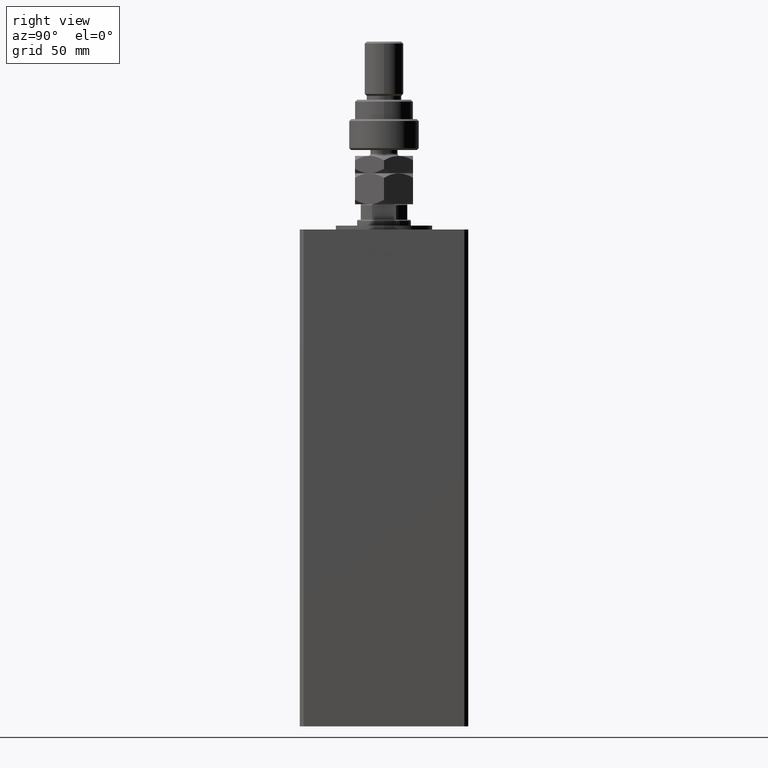
[diagram: clean part render]
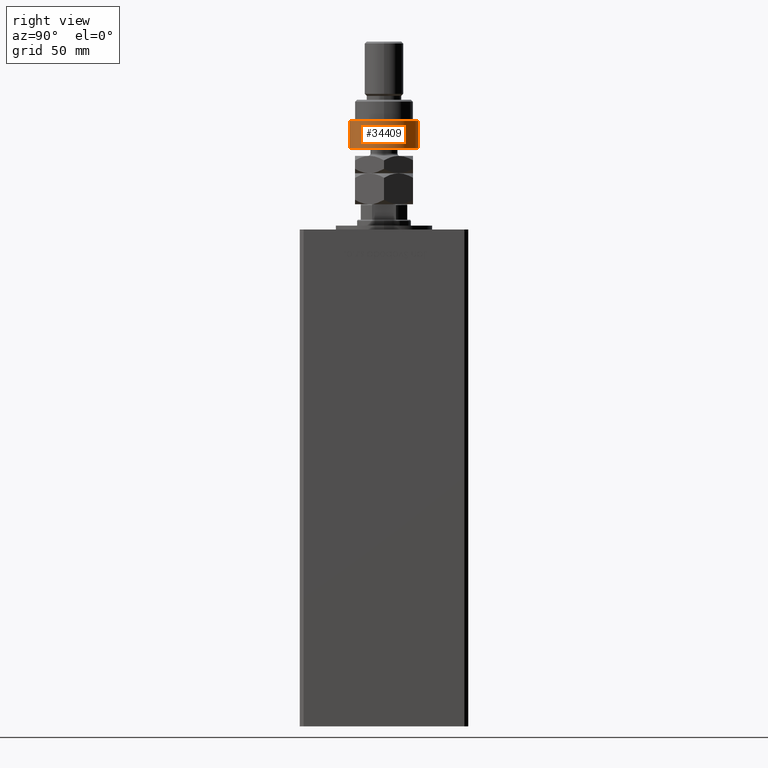
[diagram: same view with one face highlighted and labeled with its STEP entity id]
A machine part, right view. The second image highlights one B-rep face of the part: STEP entity #34409.
In plain terms, the highlighted cylindrical surface (edge-blend (fillet) strip) has radius 18 mm, axis along (-0, -0, -1).
Its self-contained STEP definition (entity closure, byte-faithful):
#983 = CARTESIAN_POINT ( 'NONE',  ( 0.000000000000000000, 0.000000000000000000, 16.00000000000000000 ) ) ;
#2047 = DIRECTION ( 'NONE',  ( -0.000000000000000000, -0.000000000000000000, -1.000000000000000000 ) ) ;
#2955 = AXIS2_PLACEMENT_3D ( 'NONE', #983, #23218, #35184 ) ;
#3449 = AXIS2_PLACEMENT_3D ( 'NONE', #52257, #10804, #19176 ) ;
#6806 = ORIENTED_EDGE ( 'NONE', *, *, #18914, .T. ) ;
#7762 = VERTEX_POINT ( 'NONE', #14590 ) ;
#8435 = ORIENTED_EDGE ( 'NONE', *, *, #43562, .T. ) ;
#9992 = CARTESIAN_POINT ( 'NONE',  ( -16.36306817195357155, 7.500000000000000000, 17.50000000000000000 ) ) ;
#10247 = DIRECTION ( 'NONE',  ( -0.000000000000000000, -0.000000000000000000, 1.000000000000000000 ) ) ;
#10804 = DIRECTION ( 'NONE',  ( -0.000000000000000000, -0.000000000000000000, 1.000000000000000000 ) ) ;
#10878 = ORIENTED_EDGE ( 'NONE', *, *, #34948, .F. ) ;
#11987 = AXIS2_PLACEMENT_3D ( 'NONE', #48074, #10247, #26686 ) ;
#14590 = CARTESIAN_POINT ( 'NONE',  ( -16.36306817195357155, -7.500000000000000000, 14.99999999999999645 ) ) ;
#15957 = DIRECTION ( 'NONE',  ( 1.000000000000000000, 0.000000000000000000, 0.000000000000000000 ) ) ;
#16265 = ORIENTED_EDGE ( 'NONE', *, *, #23722, .T. ) ;
#18914 = EDGE_CURVE ( 'NONE', #50706, #24246, #30097, .T. ) ;
#19176 = DIRECTION ( 'NONE',  ( 1.000000000000000000, 0.000000000000000000, 0.000000000000000000 ) ) ;
#19254 = CARTESIAN_POINT ( 'NONE',  ( -16.36306817195357155, 7.500000000000000000, 14.99999999999999645 ) ) ;
#19592 = DIRECTION ( 'NONE',  ( 0.000000000000000000, 0.000000000000000000, -1.000000000000000000 ) ) ;
#21038 = VECTOR ( 'NONE', #2047, 1000.000000000000000 ) ;
#22276 = CIRCLE ( 'NONE', #42716, 18.00000000000000000 ) ;
#22762 = VERTEX_POINT ( 'NONE', #19254 ) ;
#23218 = DIRECTION ( 'NONE',  ( -0.000000000000000000, -0.000000000000000000, -1.000000000000000000 ) ) ;
#23722 = EDGE_CURVE ( 'NONE', #22762, #7762, #22276, .T. ) ;
#24246 = VERTEX_POINT ( 'NONE', #45929 ) ;
#26575 = FACE_OUTER_BOUND ( 'NONE', #35464, .T. ) ;
#26686 = DIRECTION ( 'NONE',  ( 1.000000000000000000, 0.000000000000000000, 0.000000000000000000 ) ) ;
#27262 = DIRECTION ( 'NONE',  ( -0.000000000000000000, -0.000000000000000000, -1.000000000000000000 ) ) ;
#28730 = VECTOR ( 'NONE', #27262, 1000.000000000000000 ) ;
#30097 = CIRCLE ( 'NONE', #3449, 18.00000000000000000 ) ;
#32976 = VERTEX_POINT ( 'NONE', #37810 ) ;
#34409 = ADVANCED_FACE ( 'NONE', ( #26575 ), #43529, .T. ) ;
#34948 = EDGE_CURVE ( 'NONE', #22762, #32976, #35321, .T. ) ;
#35069 = CIRCLE ( 'NONE', #11987, 18.00000000000000000 ) ;
#35184 = DIRECTION ( 'NONE',  ( -1.000000000000000000, 0.000000000000000000, 0.000000000000000000 ) ) ;
#35321 = LINE ( 'NONE', #9992, #28730 ) ;
#35464 = EDGE_LOOP ( 'NONE', ( #10878, #16265, #8435, #6806, #49397 ) ) ;
#37810 = CARTESIAN_POINT ( 'NONE',  ( -16.36306817195357155, 7.500000000000000000, 1.000000000000011324 ) ) ;
#40150 = CARTESIAN_POINT ( 'NONE',  ( -16.36306817195357155, -7.500000000000000000, 17.50000000000000000 ) ) ;
#42716 = AXIS2_PLACEMENT_3D ( 'NONE', #54065, #19592, #15957 ) ;
#43529 = CYLINDRICAL_SURFACE ( 'NONE', #2955, 18.00000000000000000 ) ;
#43562 = EDGE_CURVE ( 'NONE', #7762, #50706, #44327, .T. ) ;
#44327 = LINE ( 'NONE', #40150, #21038 ) ;
#45929 = CARTESIAN_POINT ( 'NONE',  ( 18.00000000000000000, 0.000000000000000000, 1.000000000000011324 ) ) ;
#46440 = CARTESIAN_POINT ( 'NONE',  ( -16.36306817195357155, -7.500000000000000000, 1.000000000000011324 ) ) ;
#48074 = CARTESIAN_POINT ( 'NONE',  ( 0.000000000000000000, 0.000000000000000000, 1.000000000000011324 ) ) ;
#49300 = EDGE_CURVE ( 'NONE', #24246, #32976, #35069, .T. ) ;
#49397 = ORIENTED_EDGE ( 'NONE', *, *, #49300, .T. ) ;
#50706 = VERTEX_POINT ( 'NONE', #46440 ) ;
#52257 = CARTESIAN_POINT ( 'NONE',  ( 0.000000000000000000, 0.000000000000000000, 1.000000000000011324 ) ) ;
#54065 = CARTESIAN_POINT ( 'NONE',  ( 0.000000000000000000, 0.000000000000000000, 14.99999999999999645 ) ) ;